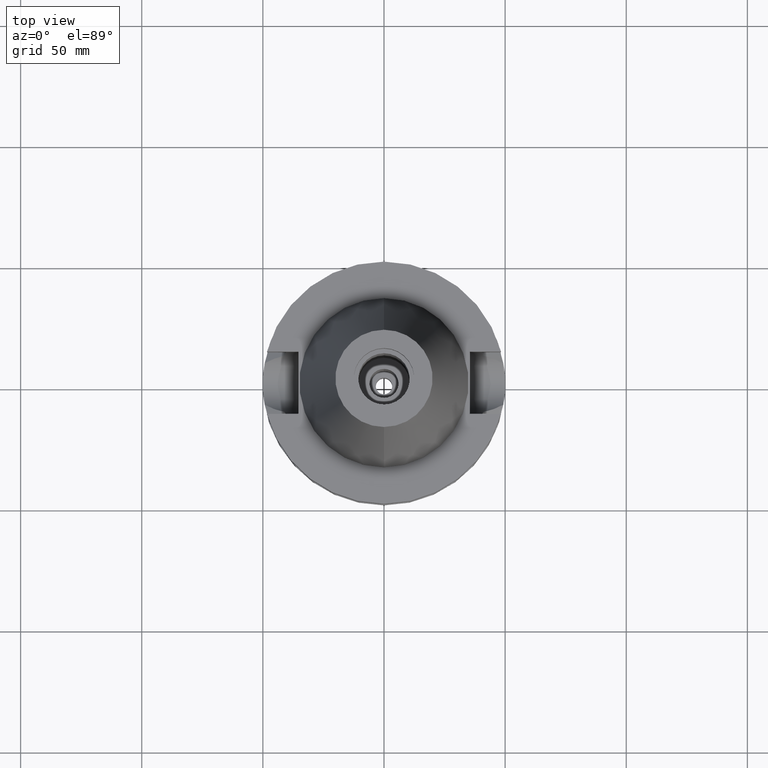
[diagram: clean part render]
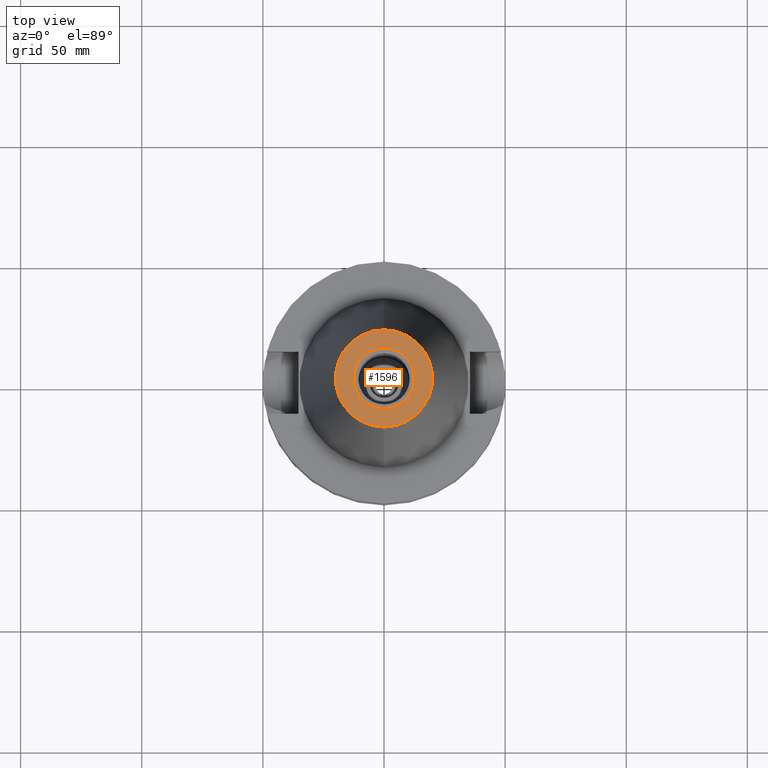
[diagram: same view with one face highlighted and labeled with its STEP entity id]
A machine part, top view. The second image highlights one B-rep face of the part: STEP entity #1596.
In plain terms, the highlighted planar face has unit normal (0, 0, -1).
Its self-contained STEP definition (entity closure, byte-faithful):
#407=CARTESIAN_POINT('',(0.E0,1.847992019913E-14,1.018E2));
#408=DIRECTION('',(0.E0,0.E0,-1.E0));
#409=DIRECTION('',(0.E0,-1.E0,0.E0));
#410=AXIS2_PLACEMENT_3D('',#407,#408,#409);
#412=CARTESIAN_POINT('',(0.E0,1.847992019913E-14,1.018E2));
#413=DIRECTION('',(0.E0,0.E0,-1.E0));
#414=DIRECTION('',(0.E0,1.E0,0.E0));
#415=AXIS2_PLACEMENT_3D('',#412,#413,#414);
#417=CARTESIAN_POINT('',(0.E0,2.634705123686E-14,1.018E2));
#418=DIRECTION('',(0.E0,0.E0,1.E0));
#419=DIRECTION('',(0.E0,-1.E0,0.E0));
#420=AXIS2_PLACEMENT_3D('',#417,#418,#419);
#422=CARTESIAN_POINT('',(0.E0,2.634705123686E-14,1.018E2));
#423=DIRECTION('',(0.E0,0.E0,1.E0));
#424=DIRECTION('',(0.E0,1.E0,0.E0));
#425=AXIS2_PLACEMENT_3D('',#422,#423,#424);
#834=CARTESIAN_POINT('',(0.E0,1.25E1,1.018E2));
#835=VERTEX_POINT('',#834);
#836=CARTESIAN_POINT('',(0.E0,-1.25E1,1.018E2));
#837=VERTEX_POINT('',#836);
#838=CARTESIAN_POINT('',(0.E0,-2.007942971896E1,1.018E2));
#839=CARTESIAN_POINT('',(0.E0,2.007942971896E1,1.018E2));
#840=VERTEX_POINT('',#838);
#841=VERTEX_POINT('',#839);
#1581=CARTESIAN_POINT('',(0.E0,2.471337240679E-14,1.018E2));
#1582=DIRECTION('',(0.E0,0.E0,-1.E0));
#1583=DIRECTION('',(0.E0,-1.E0,0.E0));
#1584=AXIS2_PLACEMENT_3D('',#1581,#1582,#1583);
#1585=PLANE('',#1584);
#1586=ORIENTED_EDGE('',*,*,#1546,.T.);
#1587=ORIENTED_EDGE('',*,*,#1569,.T.);
#1588=EDGE_LOOP('',(#1586,#1587));
#1589=FACE_OUTER_BOUND('',#1588,.F.);
#1591=ORIENTED_EDGE('',*,*,#1590,.T.);
#1593=ORIENTED_EDGE('',*,*,#1592,.T.);
#1594=EDGE_LOOP('',(#1591,#1593));
#1595=FACE_BOUND('',#1594,.F.);
#411=CIRCLE('',#410,2.007942971896E1);
#416=CIRCLE('',#415,2.007942971896E1);
#421=CIRCLE('',#420,1.25E1);
#426=CIRCLE('',#425,1.25E1);
#1546=EDGE_CURVE('',#840,#841,#411,.T.);
#1569=EDGE_CURVE('',#841,#840,#416,.T.);
#1590=EDGE_CURVE('',#837,#835,#421,.T.);
#1592=EDGE_CURVE('',#835,#837,#426,.T.);
#1596=ADVANCED_FACE('',(#1589,#1595),#1585,.F.);